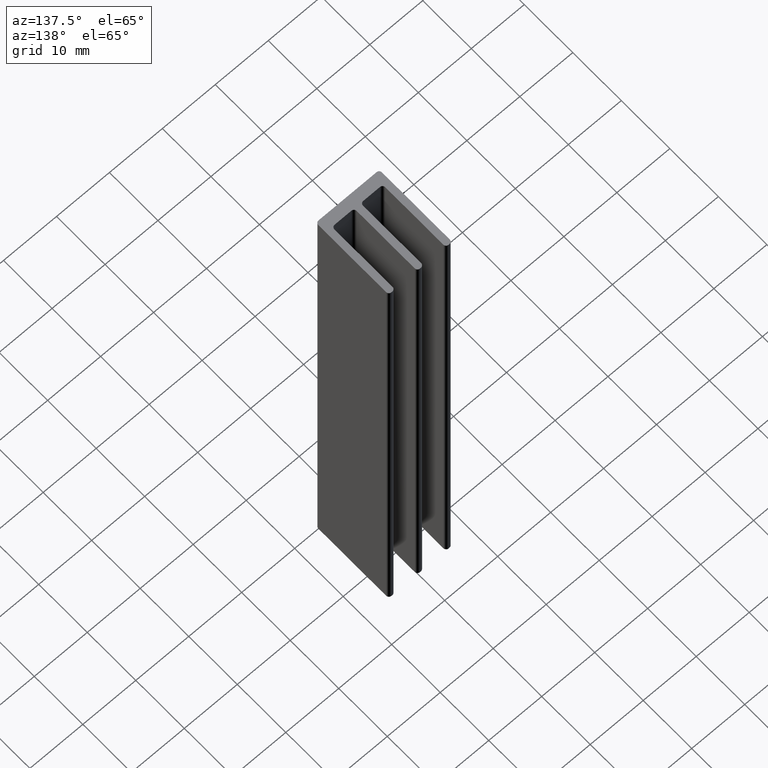
[diagram: clean part render]
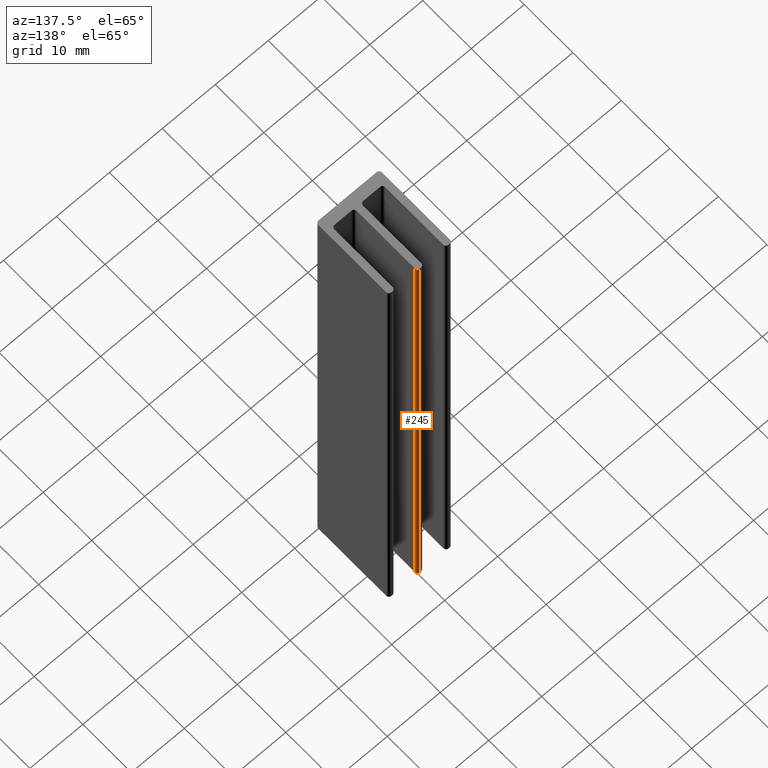
[diagram: same view with one face highlighted and labeled with its STEP entity id]
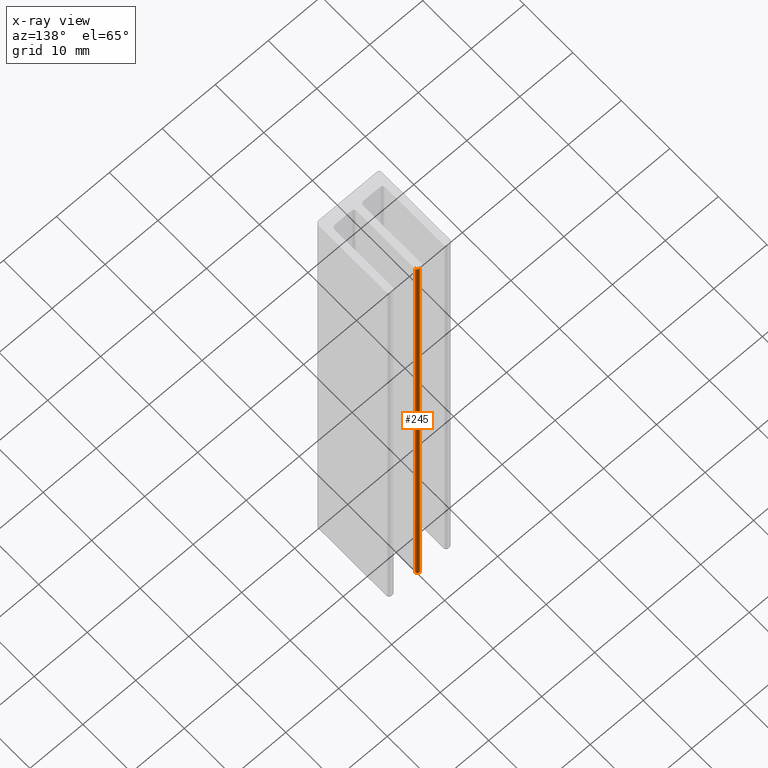
[diagram: x-ray of the same camera — body ghosted, the highlighted face saturated]
A machine part, auxiliary view. The second image highlights one B-rep face of the part: STEP entity #245.
The next image is the same camera in x-ray: the body ghosted, the highlighted face saturated — about 0% of this face is hidden behind the body in this view.
In plain terms, the highlighted cylindrical surface (edge-blend (fillet) strip) has radius 0.5 mm, axis along (-0, -0, -1).
Its self-contained STEP definition (entity closure, byte-faithful):
#8 = EDGE_CURVE ( 'NONE', #638, #424, #67, .T. ) ;
#44 = DIRECTION ( 'NONE',  ( -0.000000000000000000, -0.000000000000000000, -1.000000000000000000 ) ) ;
#60 = FACE_OUTER_BOUND ( 'NONE', #844, .T. ) ;
#67 = CIRCLE ( 'NONE', #203, 0.5000000000000002220 ) ;
#103 = CARTESIAN_POINT ( 'NONE',  ( 0.1000000000000013933, 15.00000000000000000, 100.0000000000000000 ) ) ;
#109 = EDGE_CURVE ( 'NONE', #644, #282, #491, .T. ) ;
#114 = ORIENTED_EDGE ( 'NONE', *, *, #109, .F. ) ;
#180 = DIRECTION ( 'NONE',  ( 1.000000000000000000, 0.000000000000000000, 0.000000000000000000 ) ) ;
#194 = CARTESIAN_POINT ( 'NONE',  ( 0.1000000000000014488, 14.49999999999999822, 100.0000000000000000 ) ) ;
#203 = AXIS2_PLACEMENT_3D ( 'NONE', #682, #753, #180 ) ;
#245 = ADVANCED_FACE ( 'NONE', ( #60 ), #468, .T. ) ;
#258 = DIRECTION ( 'NONE',  ( 1.000000000000000000, 0.000000000000000000, 0.000000000000000000 ) ) ;
#282 = VERTEX_POINT ( 'NONE', #103 ) ;
#284 = AXIS2_PLACEMENT_3D ( 'NONE', #899, #527, #258 ) ;
#295 = LINE ( 'NONE', #447, #727 ) ;
#369 = CARTESIAN_POINT ( 'NONE',  ( 0.6000000000000013101, 14.49999999999999822, 100.0000000000000000 ) ) ;
#420 = EDGE_CURVE ( 'NONE', #282, #424, #295, .T. ) ;
#424 = VERTEX_POINT ( 'NONE', #864 ) ;
#438 = EDGE_CURVE ( 'NONE', #644, #638, #730, .T. ) ;
#442 = CARTESIAN_POINT ( 'NONE',  ( 0.6000000000000013101, 14.49999999999999822, 100.0000000000000000 ) ) ;
#447 = CARTESIAN_POINT ( 'NONE',  ( 0.1000000000000013933, 15.00000000000000000, 100.0000000000000000 ) ) ;
#468 = CYLINDRICAL_SURFACE ( 'NONE', #629, 0.5000000000000002220 ) ;
#491 = CIRCLE ( 'NONE', #284, 0.5000000000000002220 ) ;
#510 = ORIENTED_EDGE ( 'NONE', *, *, #8, .T. ) ;
#527 = DIRECTION ( 'NONE',  ( 0.000000000000000000, 0.000000000000000000, 1.000000000000000000 ) ) ;
#563 = VECTOR ( 'NONE', #651, 1000.000000000000000 ) ;
#575 = DIRECTION ( 'NONE',  ( -0.000000000000000000, -0.000000000000000000, -1.000000000000000000 ) ) ;
#629 = AXIS2_PLACEMENT_3D ( 'NONE', #194, #44, #880 ) ;
#638 = VERTEX_POINT ( 'NONE', #813 ) ;
#644 = VERTEX_POINT ( 'NONE', #369 ) ;
#651 = DIRECTION ( 'NONE',  ( -0.000000000000000000, -0.000000000000000000, -1.000000000000000000 ) ) ;
#658 = ORIENTED_EDGE ( 'NONE', *, *, #438, .T. ) ;
#682 = CARTESIAN_POINT ( 'NONE',  ( 0.1000000000000014488, 14.49999999999999822, 0.000000000000000000 ) ) ;
#727 = VECTOR ( 'NONE', #575, 1000.000000000000000 ) ;
#730 = LINE ( 'NONE', #442, #563 ) ;
#753 = DIRECTION ( 'NONE',  ( 0.000000000000000000, 0.000000000000000000, 1.000000000000000000 ) ) ;
#775 = ORIENTED_EDGE ( 'NONE', *, *, #420, .F. ) ;
#813 = CARTESIAN_POINT ( 'NONE',  ( 0.6000000000000013101, 14.49999999999999822, 0.000000000000000000 ) ) ;
#844 = EDGE_LOOP ( 'NONE', ( #510, #775, #114, #658 ) ) ;
#864 = CARTESIAN_POINT ( 'NONE',  ( 0.1000000000000013933, 15.00000000000000000, 0.000000000000000000 ) ) ;
#880 = DIRECTION ( 'NONE',  ( -1.000000000000000000, 0.000000000000000000, 0.000000000000000000 ) ) ;
#899 = CARTESIAN_POINT ( 'NONE',  ( 0.1000000000000014488, 14.49999999999999822, 100.0000000000000000 ) ) ;